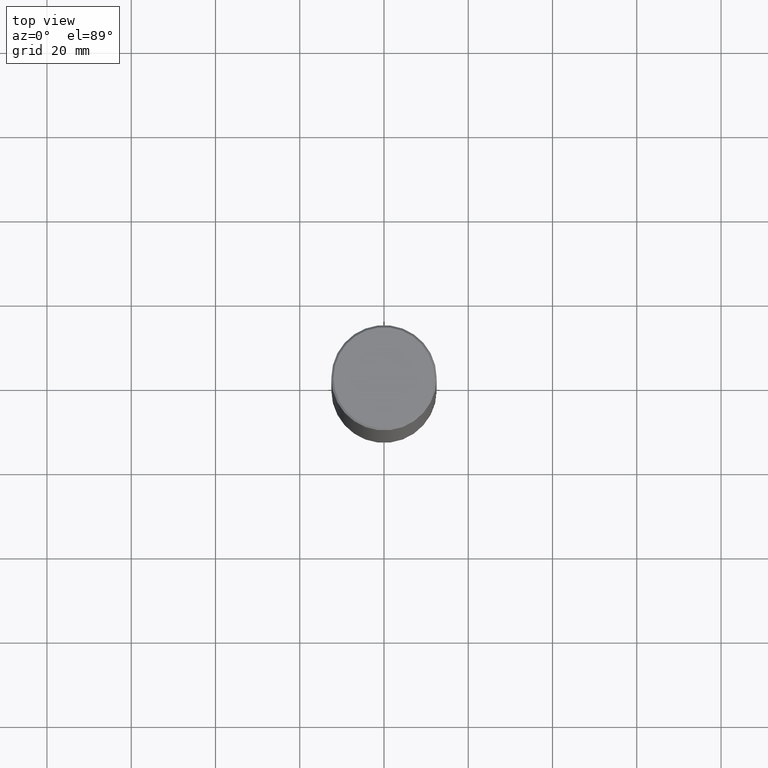
[diagram: clean part render]
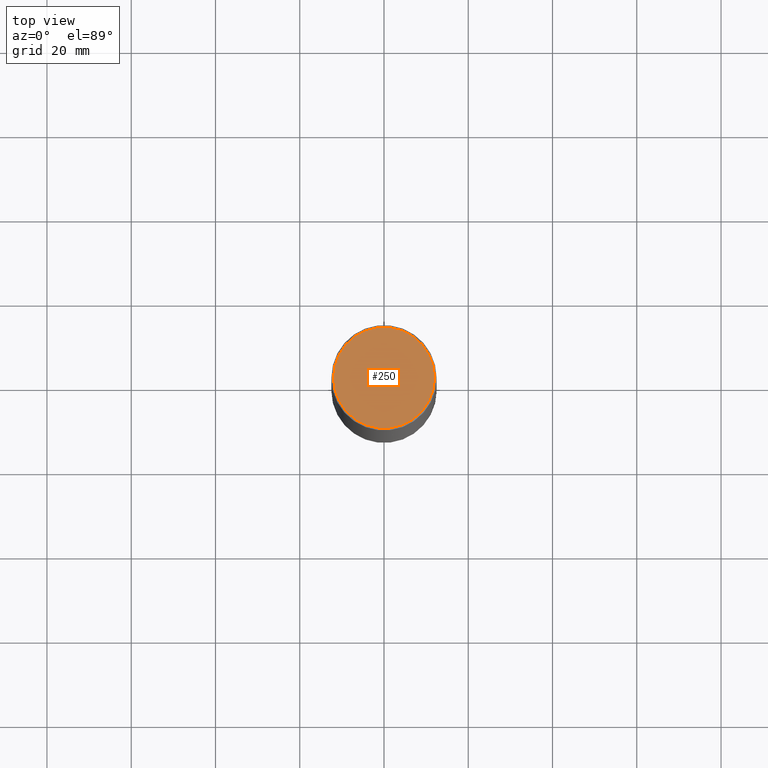
[diagram: same view with one face highlighted and labeled with its STEP entity id]
A machine part, top view. The second image highlights one B-rep face of the part: STEP entity #250.
In plain terms, the highlighted planar face has unit normal (0, -0, -1).
Its self-contained STEP definition (entity closure, byte-faithful):
#36 = CARTESIAN_POINT ( 'NONE',  ( -2.087702828670439639E-46, 2.980686340760894400E-32, 8.537024980200822558E-18 ) ) ;
#53 = DIRECTION ( 'NONE',  ( -1.000000000000000000, 6.982962677686265922E-15, -4.876176775795935793E-29 ) ) ;
#61 = VERTEX_POINT ( 'NONE', #249 ) ;
#69 = CIRCLE ( 'NONE', #285, 0.4721499999999995700 ) ;
#106 = FACE_OUTER_BOUND ( 'NONE', #121, .T. ) ;
#121 = EDGE_LOOP ( 'NONE', ( #316, #287 ) ) ;
#150 = DIRECTION ( 'NONE',  ( 1.000000000000000000, -6.982962677686265922E-15, 4.876006802227163537E-29 ) ) ;
#152 = DIRECTION ( 'NONE',  ( 1.000000000000000000, -6.982962677686265922E-15, 4.876006802227163537E-29 ) ) ;
#208 = CARTESIAN_POINT ( 'NONE',  ( 0.4721499999999995700, -3.342703923013973002E-15, 8.537024980224040028E-18 ) ) ;
#224 = AXIS2_PLACEMENT_3D ( 'NONE', #237, #314, #152 ) ;
#226 = PLANE ( 'NONE',  #279 ) ;
#237 = CARTESIAN_POINT ( 'NONE',  ( -2.087702828670439639E-46, 2.980686340760894400E-32, 8.537024980200822558E-18 ) ) ;
#249 = CARTESIAN_POINT ( 'NONE',  ( -0.4721499999999995700, 3.331920641657998857E-15, 8.537024980177643606E-18 ) ) ;
#250 = ADVANCED_FACE ( 'NONE', ( #106 ), #226, .F. ) ;
#279 = AXIS2_PLACEMENT_3D ( 'NONE', #310, #309, #53 ) ;
#285 = AXIS2_PLACEMENT_3D ( 'NONE', #36, #289, #150 ) ;
#287 = ORIENTED_EDGE ( 'NONE', *, *, #361, .T. ) ;
#289 = DIRECTION ( 'NONE',  ( -2.445468806185136597E-29, 3.491481338843145583E-15, 1.000000000000000000 ) ) ;
#309 = DIRECTION ( 'NONE',  ( 2.438088387897960049E-29, -3.491481338843145188E-15, -1.000000000000000000 ) ) ;
#310 = CARTESIAN_POINT ( 'NONE',  ( 3.297005828269567603E-15, 0.4721499999999995700, -1.644234401644689291E-15 ) ) ;
#314 = DIRECTION ( 'NONE',  ( -2.445468806185136597E-29, 3.491481338843145583E-15, 1.000000000000000000 ) ) ;
#316 = ORIENTED_EDGE ( 'NONE', *, *, #329, .T. ) ;
#322 = VERTEX_POINT ( 'NONE', #208 ) ;
#329 = EDGE_CURVE ( 'NONE', #61, #322, #366, .T. ) ;
#361 = EDGE_CURVE ( 'NONE', #322, #61, #69, .T. ) ;
#366 = CIRCLE ( 'NONE', #224, 0.4721499999999995700 ) ;